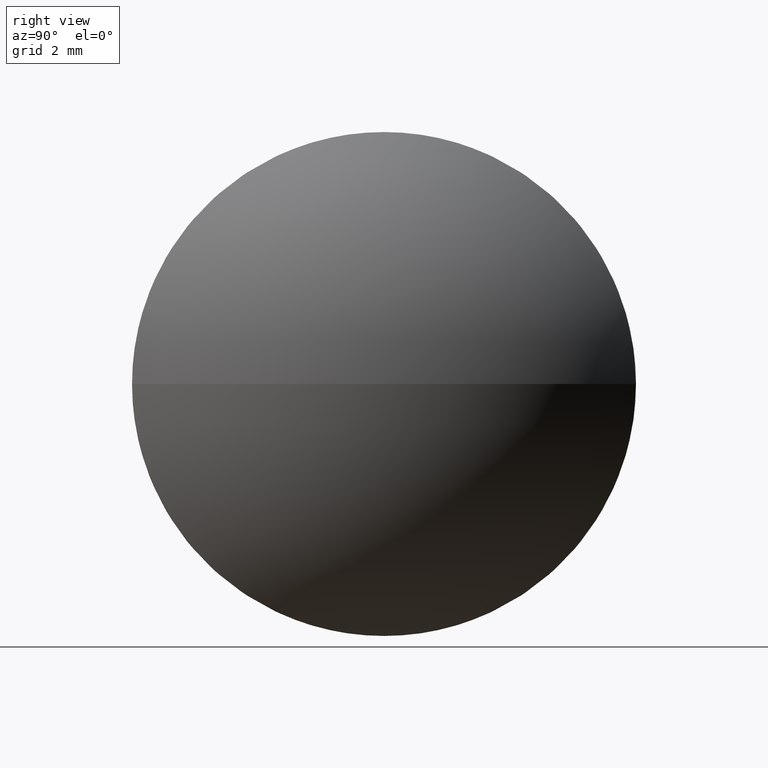
[diagram: clean part render]
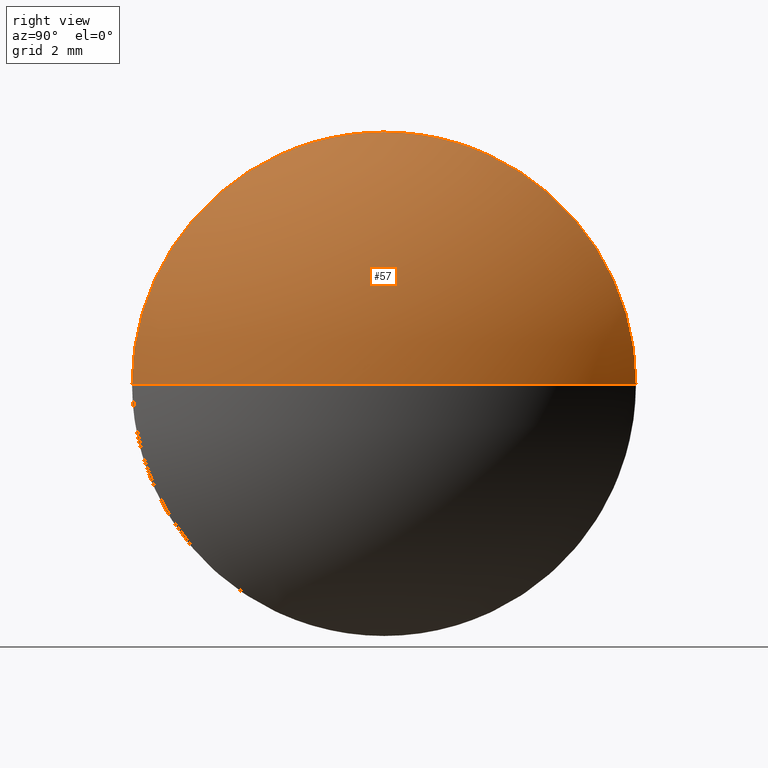
[diagram: same view with one face highlighted and labeled with its STEP entity id]
A machine part, right view. The second image highlights one B-rep face of the part: STEP entity #57.
In plain terms, the highlighted spherical surface has radius 9.4514 mm.
Its self-contained STEP definition (entity closure, byte-faithful):
#7 = EDGE_CURVE ( 'NONE', #115, #33, #166, .T. ) ;
#18 = DIRECTION ( 'NONE',  ( 0.0000000000000000000, 0.0000000000000000000, 1.000000000000000000 ) ) ;
#19 = DIRECTION ( 'NONE',  ( -1.000000000000000000, -0.0000000000000000000, -0.0000000000000000000 ) ) ;
#21 = DIRECTION ( 'NONE',  ( 0.0000000000000000000, 1.224646799147353200E-016, -1.000000000000000000 ) ) ;
#33 = VERTEX_POINT ( 'NONE', #50 ) ;
#50 = CARTESIAN_POINT ( 'NONE',  ( 377.5009013255557300, 64.39119272010739800, 0.0000000000000000000 ) ) ;
#56 = AXIS2_PLACEMENT_3D ( 'NONE', #156, #19, #18 ) ;
#57 = ADVANCED_FACE ( 'NONE', ( #141 ), #98, .T. ) ;
#60 = ORIENTED_EDGE ( 'NONE', *, *, #117, .T. ) ;
#63 = AXIS2_PLACEMENT_3D ( 'NONE', #144, #130, #90 ) ;
#69 = DIRECTION ( 'NONE',  ( 0.0000000000000000000, 1.000000000000000000, 1.224646799147352700E-016 ) ) ;
#74 = AXIS2_PLACEMENT_3D ( 'NONE', #164, #21, #69 ) ;
#75 = EDGE_LOOP ( 'NONE', ( #163, #60, #111, #177 ) ) ;
#81 = DIRECTION ( 'NONE',  ( -0.0000000000000000000, 0.0000000000000000000, 1.000000000000000000 ) ) ;
#84 = VERTEX_POINT ( 'NONE', #116 ) ;
#85 = CIRCLE ( 'NONE', #74, 9.451351351351396700 ) ;
#90 = DIRECTION ( 'NONE',  ( 0.0000000000000000000, 1.000000000000000000, 0.0000000000000000000 ) ) ;
#98 = SPHERICAL_SURFACE ( 'NONE', #63, 9.451351351351393100 ) ;
#108 = EDGE_CURVE ( 'NONE', #84, #132, #85, .T. ) ;
#111 = ORIENTED_EDGE ( 'NONE', *, *, #7, .F. ) ;
#112 = DIRECTION ( 'NONE',  ( 0.0000000000000000000, 0.0000000000000000000, 1.000000000000000000 ) ) ;
#114 = AXIS2_PLACEMENT_3D ( 'NONE', #161, #121, #112 ) ;
#115 = VERTEX_POINT ( 'NONE', #133 ) ;
#116 = CARTESIAN_POINT ( 'NONE',  ( 381.2009013255557200, 56.89119272010739100, 0.0000000000000000000 ) ) ;
#117 = EDGE_CURVE ( 'NONE', #84, #33, #151, .T. ) ;
#121 = DIRECTION ( 'NONE',  ( -1.000000000000000000, -0.0000000000000000000, -0.0000000000000000000 ) ) ;
#124 = CIRCLE ( 'NONE', #114, 7.500000000000007100 ) ;
#125 = AXIS2_PLACEMENT_3D ( 'NONE', #183, #81, #139 ) ;
#130 = DIRECTION ( 'NONE',  ( -0.0000000000000000000, 0.0000000000000000000, -1.000000000000000000 ) ) ;
#132 = VERTEX_POINT ( 'NONE', #179 ) ;
#133 = CARTESIAN_POINT ( 'NONE',  ( 377.5009013255557300, 56.89119272010739800, 7.500000000000007100 ) ) ;
#139 = DIRECTION ( 'NONE',  ( 1.000000000000000000, 0.0000000000000000000, 0.0000000000000000000 ) ) ;
#141 = FACE_OUTER_BOUND ( 'NONE', #75, .T. ) ;
#144 = CARTESIAN_POINT ( 'NONE',  ( 371.7495499742043400, 56.89119272010739100, 0.0000000000000000000 ) ) ;
#148 = EDGE_CURVE ( 'NONE', #132, #115, #124, .T. ) ;
#151 = CIRCLE ( 'NONE', #125, 9.451351351351389600 ) ;
#156 = CARTESIAN_POINT ( 'NONE',  ( 377.5009013255557300, 56.89119272010739800, 0.0000000000000000000 ) ) ;
#161 = CARTESIAN_POINT ( 'NONE',  ( 377.5009013255557300, 56.89119272010739800, 0.0000000000000000000 ) ) ;
#163 = ORIENTED_EDGE ( 'NONE', *, *, #108, .F. ) ;
#164 = CARTESIAN_POINT ( 'NONE',  ( 371.7495499742043400, 56.89119272010739100, 0.0000000000000000000 ) ) ;
#166 = CIRCLE ( 'NONE', #56, 7.500000000000007100 ) ;
#177 = ORIENTED_EDGE ( 'NONE', *, *, #148, .F. ) ;
#179 = CARTESIAN_POINT ( 'NONE',  ( 377.5009013255557300, 49.39119272010739100, -9.184850993605151900E-016 ) ) ;
#183 = CARTESIAN_POINT ( 'NONE',  ( 371.7495499742043400, 56.89119272010739100, 0.0000000000000000000 ) ) ;